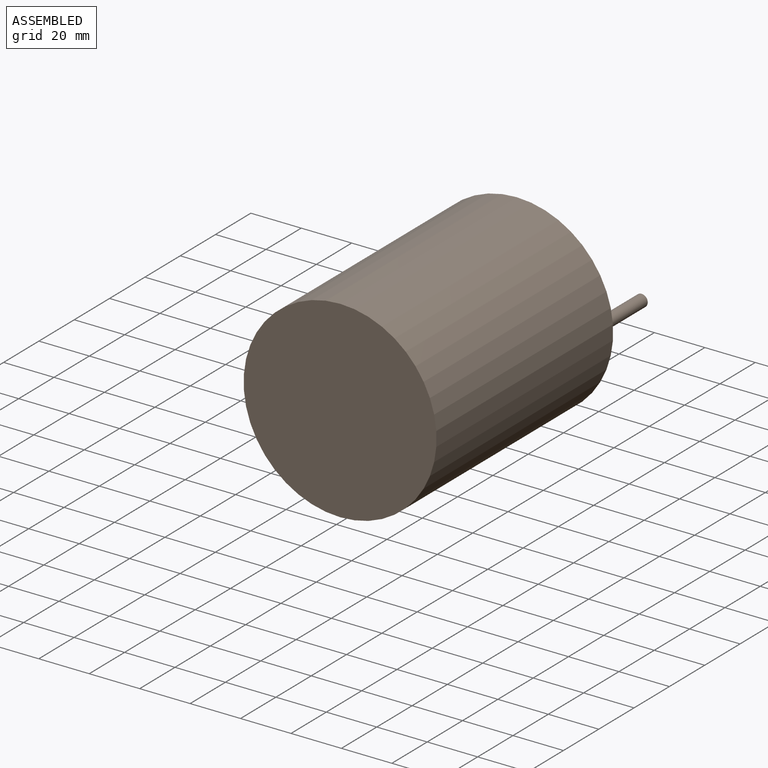
[diagram: assembled view]
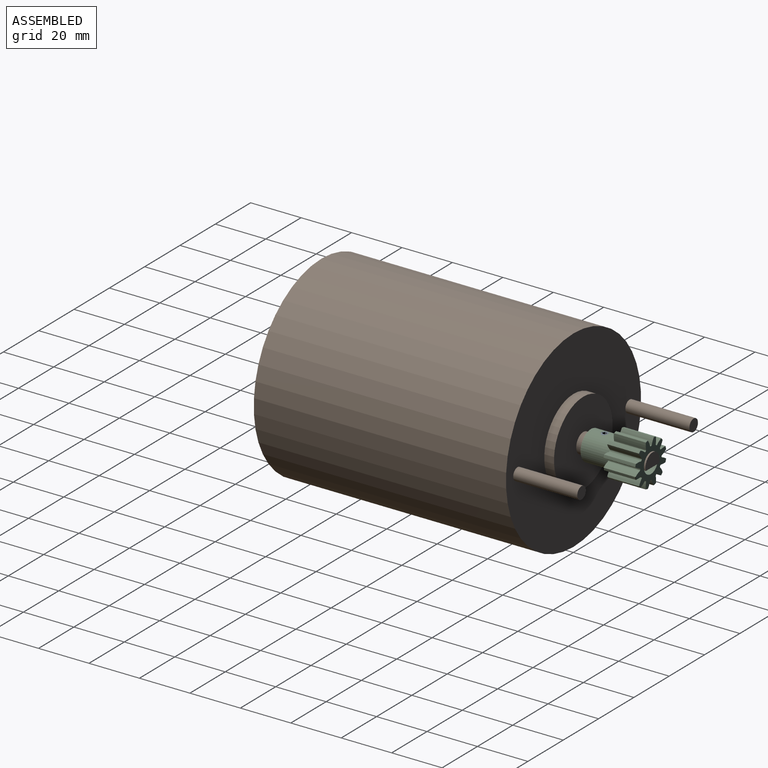
[diagram: assembled view, second angle]
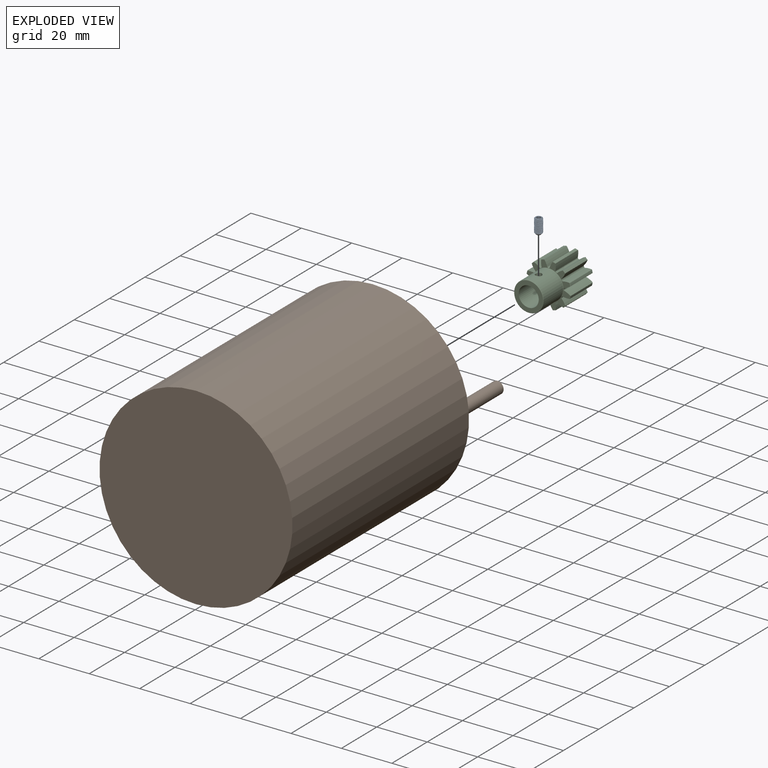
[diagram: exploded view]
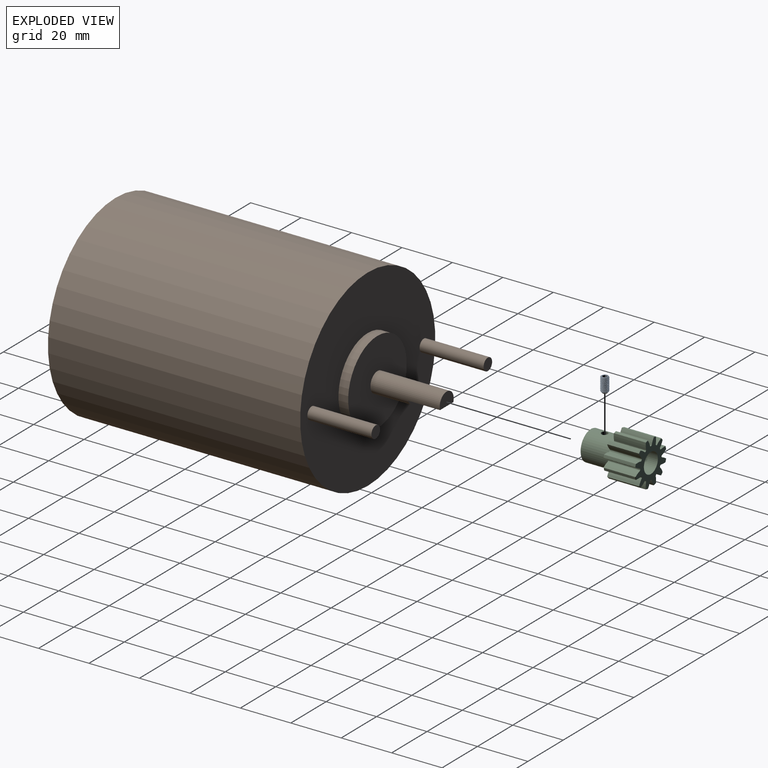
[diagram: exploded view, second angle]
ASSEMBLY  parts=3 mates=2
PART A: 27 faces, bbox 3.3x6.5x3.8 mm
  f0: plane 0.65x0.38mm, normal (0,-1,0), area 0mm2, adj f1,f25,f26
  f1: plane 1.27x1.08mm, normal (-0.5,0,-0.87), area 0.7mm2, adj f0,f2,f3,f24,f25
  f2: plane 0.75x0.22mm, normal (0,-1,0), area 0mm2, adj f1,f3,f26
  f3: plane 1.27x1.08mm, normal (0.5,0,-0.87), area 0.7mm2, adj f1,f2,f4,f5,f23
  f4: plane 0.65x0.38mm, normal (0,-1,0), area 0mm2, adj f3,f5,f26
  f5: plane 1.27x1.2mm, normal (1,0,0), area 0.7mm2, adj f3,f4,f6,f7,f22
  f6: plane 0.65x0.38mm, normal (0,-1,0), area 0mm2, adj f5,f7,f26
  f7: plane 1.27x1.08mm, normal (0.5,0,0.87), area 0.7mm2, adj f5,f6,f8,f9,f21
  f8: plane 0.75x0.22mm, normal (0,-1,0), area 0mm2, adj f7,f9,f26
  f9: plane 1.27x1.08mm, normal (-0.5,0,0.87), area 0.7mm2, adj f7,f8,f10,f11,f25
  f10: plane 0.65x0.38mm, normal (0,-1,0), area 0mm2, adj f9,f25,f26
  f11: cone r=0.87mm half-angle=45deg, axis (0,-1,0), area 0mm2, adj f9,f12
  f12: plane 2.4x2.39mm, normal (0,-1,0), area 2.1mm2, adj f11,f13,f17,f18,f19,f20,f21,f22
  f13: cylinder r=1.18mm len=5.65mm, axis (0,-1,0), area 5.7mm2, adj f12,f14,f17,f19
  f14: cone r=0.82mm half-angle=45deg, axis (0,-1,0), area 5mm2, adj f13,f15,f16,f17,f19
  f15: cylinder r=1.5mm len=5.11mm, axis (0,-1,0), area 8.9mm2, adj f14,f17,f18,f19
  f16: cone r=0mm half-angle=59deg, axis (0,1,0), area 2.5mm2, adj f14
  f17: bspline ~5.94x3.46mm, area 33.9mm2, adj f12,f13,f14,f15,f18
  f18: cone r=1.5mm half-angle=55deg, axis (0,1,0), area 1.4mm2, adj f12,f15,f17,f19
  f19: bspline ~5.94x3.46mm, area 33.9mm2, adj f12,f13,f14,f15,f18
  f20: cone r=0.87mm half-angle=45deg, axis (0,-1,0), area 0mm2, adj f12,f25
  f21: cone r=0.87mm half-angle=45deg, axis (0,-1,0), area 0mm2, adj f7,f12
  f22: cone r=0.87mm half-angle=45deg, axis (0,-1,0), area 0mm2, adj f5,f12
  f23: cone r=0.87mm half-angle=45deg, axis (0,-1,0), area 0mm2, adj f3,f12
  f24: cone r=0.87mm half-angle=45deg, axis (0,-1,0), area 0mm2, adj f1,f12
  f25: plane 1.27x1.2mm, normal (-1,0,0), area 0.7mm2, adj f0,f1,f9,f10,f20
  f26: cone r=0.75mm half-angle=60deg, axis (0,-1,0), area 2mm2, adj f0,f2,f4,f6,f8,f10
PART B: 13 faces, bbox 76.5x76.5x131.3 mm
  f0: cylinder r=38.25mm len=100mm, axis (0,0,-1), area 24033.2mm2, adj f1,f2
  f1: plane 76.5x76.5mm, normal (0,0,1), area 3696.7mm2, adj f0,f3,f9,f11
  f2: plane 76.5x76.5mm, normal (0,0,-1), area 4596.3mm2, adj f0
  f3: cylinder r=16.57mm len=33.15mm, axis (0,0,-1), area 402mm2, adj f1,f4
  f4: plane 33.15x33.15mm, normal (0,0,1), area 813.6mm2, adj f3,f5
  f5: cylinder r=3.97mm len=27.45mm, axis (0,0,-1), area 559mm2, adj f4,f6,f7,f8
  f6: plane 7.94x5.24mm, normal (0,0,1), area 34.6mm2, adj f5,f7
  f7: plane 12.7x7.52mm, normal (0,1,0), area 95.5mm2, adj f5,f6,f8
  f8: plane 7.52x2.7mm, normal (0,0,1), area 14.8mm2, adj f5,f7
  f9: cylinder r=2.41mm len=25.4mm, axis (0,0,-1), area 385.1mm2, adj f1,f10
  f10: plane 4.83x4.83mm, normal (0,0,1), area 18.3mm2, adj f9
  f11: cylinder r=2.41mm len=25.4mm, axis (0,0,-1), area 385.1mm2, adj f1,f12
  f12: plane 4.83x4.83mm, normal (0,0,1), area 18.3mm2, adj f11
PART C: 104 faces, bbox 17.5x23.9x17.5 mm
  f0: cylinder r=8.89mm len=12.34mm, axis (0,1,0), area 14.2mm2, adj f1,f2,f94,f98
  f1: torus R=8.71mm, axis (0,-1,0), area 0.3mm2, adj f0,f36,f94,f98
  f2: torus R=8.71mm, axis (0,1,0), area 0.3mm2, adj f0,f38,f94,f98
  f3: cylinder r=8.89mm len=12.34mm, axis (0,1,0), area 14.2mm2, adj f4,f5,f89,f93
  f4: torus R=8.71mm, axis (0,-1,0), area 0.3mm2, adj f3,f36,f89,f93
  f5: torus R=8.71mm, axis (0,1,0), area 0.3mm2, adj f3,f38,f89,f93
  f6: cylinder r=8.89mm len=12.34mm, axis (0,1,0), area 14.2mm2, adj f7,f8,f84,f88
  f7: torus R=8.71mm, axis (0,-1,0), area 0.3mm2, adj f6,f36,f84,f88
  f8: torus R=8.71mm, axis (0,1,0), area 0.3mm2, adj f6,f38,f84,f88
  f9: cylinder r=8.89mm len=12.34mm, axis (0,1,0), area 14.2mm2, adj f10,f11,f79,f83
  f10: torus R=8.71mm, axis (0,-1,0), area 0.3mm2, adj f9,f36,f79,f83
  f11: torus R=8.71mm, axis (0,1,0), area 0.3mm2, adj f9,f38,f79,f83
  f12: cylinder r=8.89mm len=12.34mm, axis (0,1,0), area 14.2mm2, adj f13,f14,f74,f78
  f13: torus R=8.71mm, axis (0,-1,0), area 0.3mm2, adj f12,f36,f74,f78
  f14: torus R=8.71mm, axis (0,1,0), area 0.3mm2, adj f12,f38,f74,f78
  f15: cylinder r=8.89mm len=12.34mm, axis (0,1,0), area 14.2mm2, adj f16,f17,f69,f73
  f16: torus R=8.71mm, axis (0,-1,0), area 0.3mm2, adj f15,f36,f69,f73
  f17: torus R=8.71mm, axis (0,1,0), area 0.3mm2, adj f15,f38,f69,f73
  f18: cylinder r=8.89mm len=12.34mm, axis (0,1,0), area 14.2mm2, adj f19,f20,f64,f68
  f19: torus R=8.71mm, axis (0,-1,0), area 0.3mm2, adj f18,f36,f64,f68
  f20: torus R=8.71mm, axis (0,1,0), area 0.3mm2, adj f18,f38,f64,f68
  f21: cylinder r=8.89mm len=12.34mm, axis (0,1,0), area 14.2mm2, adj f22,f23,f59,f63
  f22: torus R=8.71mm, axis (0,-1,0), area 0.3mm2, adj f21,f36,f59,f63
  f23: torus R=8.71mm, axis (0,1,0), area 0.3mm2, adj f21,f38,f59,f63
  f24: cylinder r=8.89mm len=12.34mm, axis (0,1,0), area 14.2mm2, adj f25,f26,f54,f58
  f25: torus R=8.71mm, axis (0,-1,0), area 0.3mm2, adj f24,f36,f54,f58
  f26: torus R=8.71mm, axis (0,1,0), area 0.3mm2, adj f24,f38,f54,f58
  f27: cylinder r=8.89mm len=12.34mm, axis (0,1,0), area 14.2mm2, adj f28,f29,f49,f53
  f28: torus R=8.71mm, axis (0,-1,0), area 0.3mm2, adj f27,f36,f49,f53
  f29: torus R=8.71mm, axis (0,1,0), area 0.3mm2, adj f27,f38,f49,f53
  f30: cylinder r=8.89mm len=12.34mm, axis (0,1,0), area 14.2mm2, adj f31,f32,f44,f48
  f31: torus R=8.71mm, axis (0,-1,0), area 0.3mm2, adj f30,f36,f44,f48
  f32: torus R=8.71mm, axis (0,1,0), area 0.3mm2, adj f30,f38,f44,f48
  f33: cylinder r=3.97mm len=23.88mm, axis (0,1,0), area 590.3mm2, adj f34,f38,f103
  f34: plane 11.33x11.33mm, normal (0,-1,0), area 51.3mm2, adj f33,f39
  f35: cylinder r=5.84mm len=11.68mm, axis (0,1,0), area 392.1mm2, adj f39,f40,f103
  f36: plane 17.12x17.12mm, normal (0,-1,0), area 65.6mm2, adj f1,f4,f7,f10,f13,f16,f19,f22
  f37: cylinder r=8.89mm len=12.34mm, axis (0,1,0), area 14.2mm2, adj f41,f42,f43,f99
  f38: plane 17.12x17.12mm, normal (0,1,0), area 129.9mm2, adj f2,f5,f8,f11,f14,f17,f20,f23
  f39: torus R=5.66mm, axis (0,-1,0), area 10.1mm2, adj f34,f35
  f40: torus R=6.02mm, axis (0,-1,0), area 10.4mm2, adj f35,f36
  f41: torus R=8.71mm, axis (0,-1,0), area 0.3mm2, adj f36,f37,f43,f99
  f42: torus R=8.71mm, axis (0,1,0), area 0.3mm2, adj f37,f38,f43,f99
  f43: cylinder r=7.62mm len=12.7mm, axis (0,-1,0), area 34.8mm2, adj f36,f37,f38,f41,f42,f47
  f44: cylinder r=7.62mm len=12.7mm, axis (0,-1,0), area 34.8mm2, adj f30,f31,f32,f36,f38,f45
  f45: cylinder r=0.38mm len=12.7mm, axis (0,-1,0), area 6.2mm2, adj f36,f38,f44,f46
  f46: cylinder r=6.03mm len=12.7mm, axis (0,-1,0), area 2.7mm2, adj f36,f38,f45,f47
  f47: cylinder r=0.38mm len=12.7mm, axis (0,-1,0), area 6.2mm2, adj f36,f38,f43,f46
  f48: cylinder r=7.62mm len=12.7mm, axis (0,-1,0), area 34.8mm2, adj f30,f31,f32,f36,f38,f52
  f49: cylinder r=7.62mm len=12.7mm, axis (0,-1,0), area 34.8mm2, adj f27,f28,f29,f36,f38,f50
  f50: cylinder r=0.38mm len=12.7mm, axis (0,-1,0), area 6.2mm2, adj f36,f38,f49,f51
  f51: cylinder r=6.03mm len=12.7mm, axis (0,-1,0), area 2.7mm2, adj f36,f38,f50,f52
  f52: cylinder r=0.38mm len=12.7mm, axis (0,-1,0), area 6.2mm2, adj f36,f38,f48,f51
  f53: cylinder r=7.62mm len=12.7mm, axis (0,-1,0), area 34.8mm2, adj f27,f28,f29,f36,f38,f57
  f54: cylinder r=7.62mm len=12.7mm, axis (0,-1,0), area 34.8mm2, adj f24,f25,f26,f36,f38,f55
  f55: cylinder r=0.38mm len=12.7mm, axis (0,-1,0), area 6.2mm2, adj f36,f38,f54,f56
  f56: cylinder r=6.03mm len=12.7mm, axis (0,-1,0), area 2.7mm2, adj f36,f38,f55,f57
  f57: cylinder r=0.38mm len=12.7mm, axis (0,-1,0), area 6.2mm2, adj f36,f38,f53,f56
  f58: cylinder r=7.62mm len=12.7mm, axis (0,-1,0), area 34.8mm2, adj f24,f25,f26,f36,f38,f62
  f59: cylinder r=7.62mm len=12.7mm, axis (0,-1,0), area 34.8mm2, adj f21,f22,f23,f36,f38,f60
  f60: cylinder r=0.38mm len=12.7mm, axis (0,-1,0), area 6.2mm2, adj f36,f38,f59,f61
  f61: cylinder r=6.03mm len=12.7mm, axis (0,-1,0), area 2.7mm2, adj f36,f38,f60,f62
  f62: cylinder r=0.38mm len=12.7mm, axis (0,-1,0), area 6.2mm2, adj f36,f38,f58,f61
  f63: cylinder r=7.62mm len=12.7mm, axis (0,-1,0), area 34.8mm2, adj f21,f22,f23,f36,f38,f67
  f64: cylinder r=7.62mm len=12.7mm, axis (0,-1,0), area 34.8mm2, adj f18,f19,f20,f36,f38,f65
  f65: cylinder r=0.38mm len=12.7mm, axis (0,-1,0), area 6.2mm2, adj f36,f38,f64,f66
  f66: cylinder r=6.03mm len=12.7mm, axis (0,-1,0), area 2.7mm2, adj f36,f38,f65,f67
  f67: cylinder r=0.38mm len=12.7mm, axis (0,-1,0), area 6.2mm2, adj f36,f38,f63,f66
  f68: cylinder r=7.62mm len=12.7mm, axis (0,-1,0), area 34.8mm2, adj f18,f19,f20,f36,f38,f72
  f69: cylinder r=7.62mm len=12.7mm, axis (0,-1,0), area 34.8mm2, adj f15,f16,f17,f36,f38,f70
  f70: cylinder r=0.38mm len=12.7mm, axis (0,-1,0), area 6.2mm2, adj f36,f38,f69,f71
  f71: cylinder r=6.03mm len=12.7mm, axis (0,-1,0), area 2.7mm2, adj f36,f38,f70,f72
  f72: cylinder r=0.38mm len=12.7mm, axis (0,-1,0), area 6.2mm2, adj f36,f38,f68,f71
  f73: cylinder r=7.62mm len=12.7mm, axis (0,-1,0), area 34.8mm2, adj f15,f16,f17,f36,f38,f77
  f74: cylinder r=7.62mm len=12.7mm, axis (0,-1,0), area 34.8mm2, adj f12,f13,f14,f36,f38,f75
  f75: cylinder r=0.38mm len=12.7mm, axis (0,-1,0), area 6.2mm2, adj f36,f38,f74,f76
  f76: cylinder r=6.03mm len=12.7mm, axis (0,-1,0), area 2.7mm2, adj f36,f38,f75,f77
  f77: cylinder r=0.38mm len=12.7mm, axis (0,-1,0), area 6.2mm2, adj f36,f38,f73,f76
  f78: cylinder r=7.62mm len=12.7mm, axis (0,-1,0), area 34.8mm2, adj f12,f13,f14,f36,f38,f82
  f79: cylinder r=7.62mm len=12.7mm, axis (0,-1,0), area 34.8mm2, adj f9,f10,f11,f36,f38,f80
  f80: cylinder r=0.38mm len=12.7mm, axis (0,-1,0), area 6.2mm2, adj f36,f38,f79,f81
  f81: cylinder r=6.03mm len=12.7mm, axis (0,-1,0), area 2.7mm2, adj f36,f38,f80,f82
  f82: cylinder r=0.38mm len=12.7mm, axis (0,-1,0), area 6.2mm2, adj f36,f38,f78,f81
  f83: cylinder r=7.62mm len=12.7mm, axis (0,-1,0), area 34.8mm2, adj f9,f10,f11,f36,f38,f87
  f84: cylinder r=7.62mm len=12.7mm, axis (0,-1,0), area 34.8mm2, adj f6,f7,f8,f36,f38,f85
  f85: cylinder r=0.38mm len=12.7mm, axis (0,-1,0), area 6.2mm2, adj f36,f38,f84,f86
  f86: cylinder r=6.03mm len=12.7mm, axis (0,-1,0), area 2.7mm2, adj f36,f38,f85,f87
  f87: cylinder r=0.38mm len=12.7mm, axis (0,-1,0), area 6.2mm2, adj f36,f38,f83,f86
  f88: cylinder r=7.62mm len=12.7mm, axis (0,-1,0), area 34.8mm2, adj f6,f7,f8,f36,f38,f92
  f89: cylinder r=7.62mm len=12.7mm, axis (0,-1,0), area 34.8mm2, adj f3,f4,f5,f36,f38,f90
  f90: cylinder r=0.38mm len=12.7mm, axis (0,-1,0), area 6.2mm2, adj f36,f38,f89,f91
  f91: cylinder r=6.03mm len=12.7mm, axis (0,-1,0), area 2.7mm2, adj f36,f38,f90,f92
  f92: cylinder r=0.38mm len=12.7mm, axis (0,-1,0), area 6.2mm2, adj f36,f38,f88,f91
  f93: cylinder r=7.62mm len=12.7mm, axis (0,-1,0), area 34.8mm2, adj f3,f4,f5,f36,f38,f97
  f94: cylinder r=7.62mm len=12.7mm, axis (0,-1,0), area 34.8mm2, adj f0,f1,f2,f36,f38,f95
  f95: cylinder r=0.38mm len=12.7mm, axis (0,-1,0), area 6.2mm2, adj f36,f38,f94,f96
  f96: cylinder r=6.03mm len=12.7mm, axis (0,-1,0), area 2.7mm2, adj f36,f38,f95,f97
  f97: cylinder r=0.38mm len=12.7mm, axis (0,-1,0), area 6.2mm2, adj f36,f38,f93,f96
  f98: cylinder r=7.62mm len=12.7mm, axis (0,-1,0), area 34.8mm2, adj f0,f1,f2,f36,f38,f102
  f99: cylinder r=7.62mm len=12.7mm, axis (0,-1,0), area 34.8mm2, adj f36,f37,f38,f41,f42,f100
  f100: cylinder r=0.38mm len=12.7mm, axis (0,-1,0), area 6.2mm2, adj f36,f38,f99,f101
  f101: cylinder r=6.03mm len=12.7mm, axis (0,-1,0), area 2.7mm2, adj f36,f38,f100,f102
  f102: cylinder r=0.38mm len=12.7mm, axis (0,-1,0), area 6.2mm2, adj f36,f38,f98,f101
  f103: cylinder r=1.27mm len=2.54mm, axis (0,0,1), area 15.2mm2, adj f33,f35
PLACE A rot(axis=(-1,0,0),90deg) t=(-119.07,33.12,87.21)mm
PLACE B rot(axis=(-1,0,0),90deg) t=(-119.07,-79.26,84.1)mm
PLACE C t=(-119.07,51.41,84.1)mm
MATE fastened C.f103 <-> A.f13  axis (0,0,1) through (-119.07,33.12,89.96)mm
MATE fastened B.f0 <-> C.f2  axis (0,1,0) through (-119.07,52.05,84.1)mm
